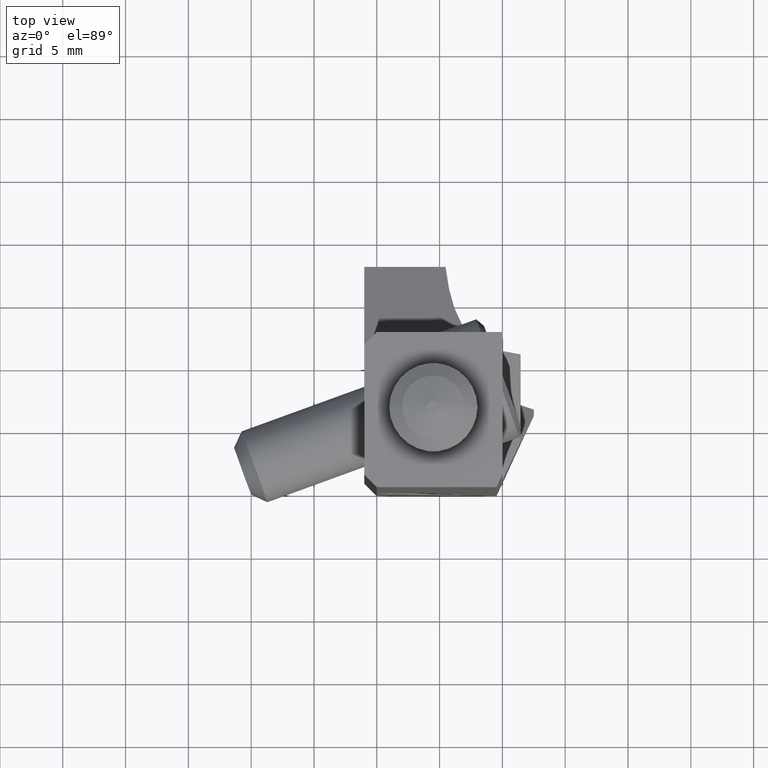
[diagram: clean part render]
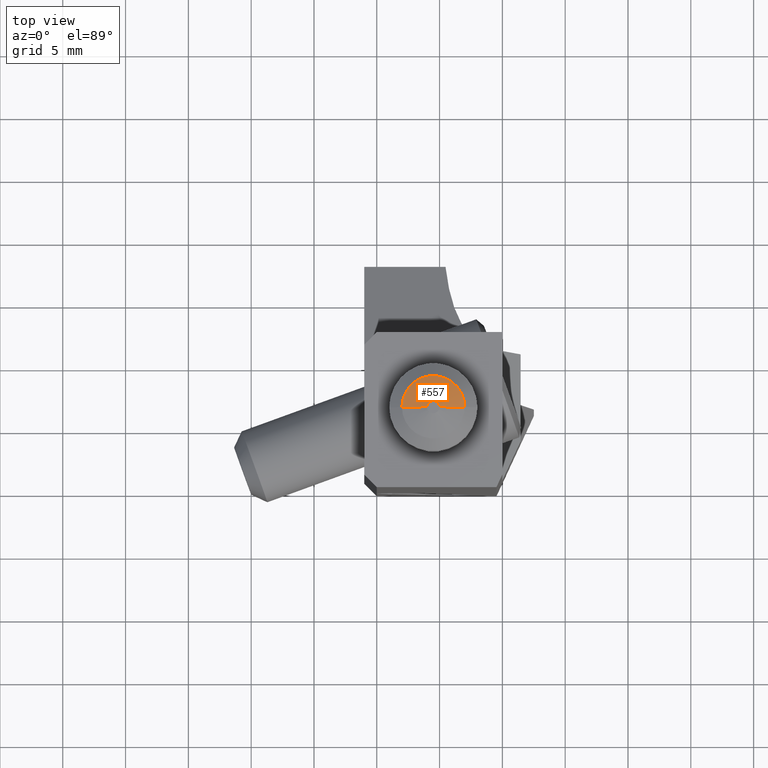
[diagram: same view with one face highlighted and labeled with its STEP entity id]
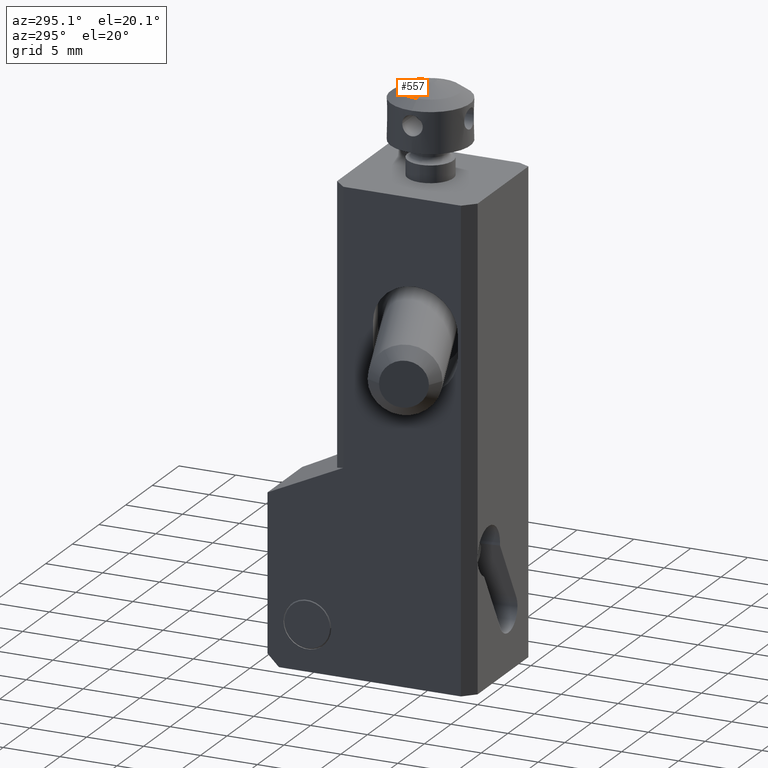
[diagram: same view with one face highlighted and labeled with its STEP entity id]
A machine part, top view. The second image highlights one B-rep face of the part: STEP entity #557.
A second angle (auxiliary view) of the same face is appended — the face is thin or edge-on in the first view.
In plain terms, the highlighted conical surface has half-angle 70 deg.
Its self-contained STEP definition (entity closure, byte-faithful):
#57=CONICAL_SURFACE('',#4588,1.5,69.99999999999);
#344=CIRCLE('',#4575,2.5);
#346=CIRCLE('',#4587,0.5000000000001);
#557=ADVANCED_FACE('',(#880),#57,.T.);
#880=FACE_OUTER_BOUND('',#1105,.T.);
#1105=EDGE_LOOP('',(#2227,#2228,#2229,#2230));
#2227=ORIENTED_EDGE('',*,*,#3298,.F.);
#2228=ORIENTED_EDGE('',*,*,#3274,.F.);
#2229=ORIENTED_EDGE('',*,*,#3299,.F.);
#2230=ORIENTED_EDGE('',*,*,#3300,.T.);
#2724=VERTEX_POINT('',#7205);
#2725=VERTEX_POINT('',#7207);
#2736=VERTEX_POINT('',#7575);
#2737=VERTEX_POINT('',#7577);
#3274=EDGE_CURVE('',#2725,#2724,#344,.T.);
#3298=EDGE_CURVE('',#2724,#2736,#3683,.T.);
#3299=EDGE_CURVE('',#2737,#2725,#3684,.T.);
#3300=EDGE_CURVE('',#2737,#2736,#346,.T.);
#3683=LINE('',#7574,#4036);
#3684=LINE('',#7576,#4037);
#4036=VECTOR('',#5719,1.);
#4037=VECTOR('',#5720,1.);
#4575=AXIS2_PLACEMENT_3D('',#7210,#5687,#5688);
#4587=AXIS2_PLACEMENT_3D('',#7578,#5721,#5722);
#4588=AXIS2_PLACEMENT_3D('',#7579,#5723,#5724);
#5687=DIRECTION('',(0.,0.,-1.));
#5688=DIRECTION('',(-1.,0.,0.));
#5719=DIRECTION('',(-0.939692620785897,0.,0.342020143325699));
#5720=DIRECTION('',(-0.939692620785897,0.,-0.342020143325699));
#5721=DIRECTION('',(0.,0.,-1.));
#5722=DIRECTION('',(-1.,0.,0.));
#5723=DIRECTION('',(0.,0.,-1.));
#5724=DIRECTION('',(-1.,0.,-1.29363853649257E-17));
#7205=CARTESIAN_POINT('',(-3.,6.25,7.272059531468));
#7207=CARTESIAN_POINT('',(-8.,6.25,7.272059531468));
#7210=CARTESIAN_POINT('',(-5.5,6.25,7.272059531468));
#7574=CARTESIAN_POINT('',(-3.,6.25,7.272059531468));
#7575=CARTESIAN_POINT('',(-5.,6.25,8.));
#7576=CARTESIAN_POINT('',(-6.,6.25,8.));
#7577=CARTESIAN_POINT('',(-6.,6.25,8.));
#7578=CARTESIAN_POINT('',(-5.5,6.25,8.));
#7579=CARTESIAN_POINT('',(-5.5,6.25,7.636029765734));